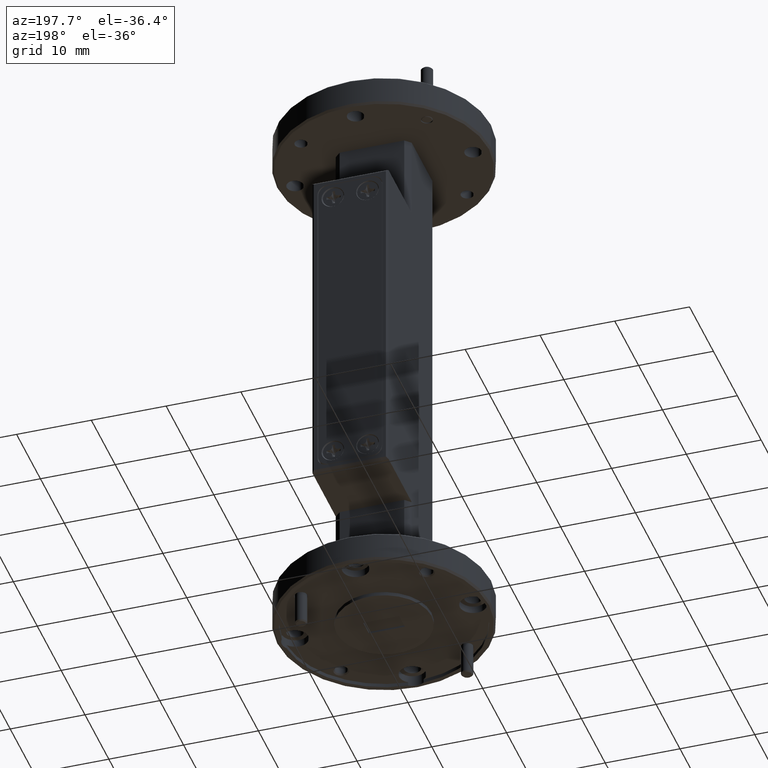
[diagram: clean part render]
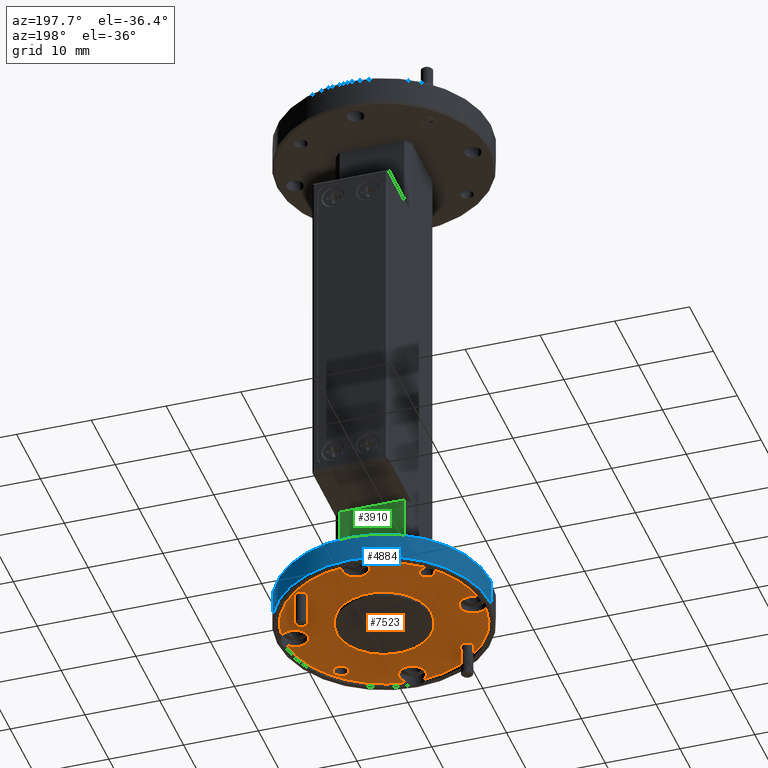
[diagram: same view with three faces highlighted in distinct colors, each labeled with its STEP entity id]
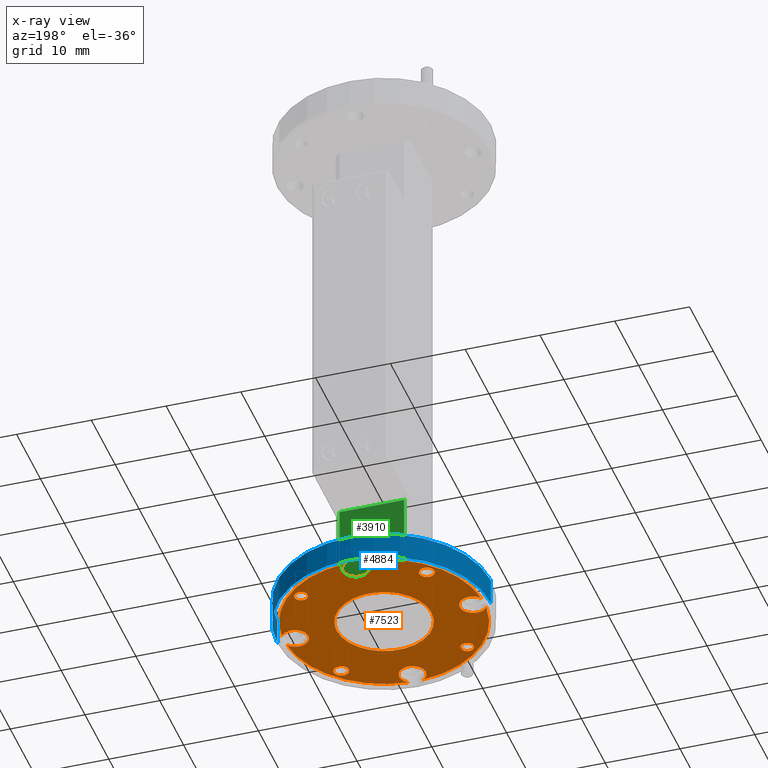
[diagram: x-ray of the same camera — body ghosted, the three highlighted faces saturated]
A machine part, auxiliary view with three faces highlighted in distinct colors.
The next image is the same camera in x-ray (body ghosted, the three faces saturated) — at least one of them is partly hidden behind the body in this view.
Their STEP definitions:

[orange] entity #7523 — the highlighted planar face has unit normal (0, 0, -1).
#43 = DIRECTION ( 'NONE',  ( -1.000000000000000000, 0.000000000000000000, 0.000000000000000000 ) ) ;
#83 = AXIS2_PLACEMENT_3D ( 'NONE', #3281, #2484, #9247 ) ;
#115 = CARTESIAN_POINT ( 'NONE',  ( 0.000000000000000000, 0.000000000000000000, -1.479999999999999982 ) ) ;
#120 = EDGE_CURVE ( 'NONE', #1105, #7238, #5233, .T. ) ;
#314 = VERTEX_POINT ( 'NONE', #1431 ) ;
#347 = VERTEX_POINT ( 'NONE', #3337 ) ;
#413 = CARTESIAN_POINT ( 'NONE',  ( -0.2500000000000000000, 0.000000000000000000, -1.479999999999999982 ) ) ;
#428 = CIRCLE ( 'NONE', #586, 0.03500000000000003803 ) ;
#461 = CARTESIAN_POINT ( 'NONE',  ( 0.3987499999999999933, 0.000000000000000000, -1.479999999999999982 ) ) ;
#514 = ORIENTED_EDGE ( 'NONE', *, *, #1768, .F. ) ;
#586 = AXIS2_PLACEMENT_3D ( 'NONE', #7644, #3032, #6835 ) ;
#609 = EDGE_CURVE ( 'NONE', #347, #1424, #6994, .T. ) ;
#626 = EDGE_LOOP ( 'NONE', ( #9260, #2370 ) ) ;
#651 = EDGE_CURVE ( 'NONE', #7348, #2653, #3474, .T. ) ;
#664 = DIRECTION ( 'NONE',  ( -0.000000000000000000, -0.000000000000000000, -1.000000000000000000 ) ) ;
#678 = DIRECTION ( 'NONE',  ( -1.000000000000000000, 0.000000000000000000, 0.000000000000000000 ) ) ;
#683 = VERTEX_POINT ( 'NONE', #7580 ) ;
#729 = AXIS2_PLACEMENT_3D ( 'NONE', #9747, #7349, #3438 ) ;
#741 = AXIS2_PLACEMENT_3D ( 'NONE', #7565, #3016, #7669 ) ;
#783 = FACE_OUTER_BOUND ( 'NONE', #2409, .T. ) ;
#790 = ORIENTED_EDGE ( 'NONE', *, *, #1443, .F. ) ;
#851 = CARTESIAN_POINT ( 'NONE',  ( -0.4687500000000000000, 0.000000000000000000, -1.479999999999999982 ) ) ;
#997 = AXIS2_PLACEMENT_3D ( 'NONE', #4890, #4031, #9342 ) ;
#1053 = ORIENTED_EDGE ( 'NONE', *, *, #4944, .F. ) ;
#1060 = CIRCLE ( 'NONE', #741, 0.5274999999999999689 ) ;
#1083 = CARTESIAN_POINT ( 'NONE',  ( 0.000000000000000000, 0.000000000000000000, -1.479999999999999982 ) ) ;
#1105 = VERTEX_POINT ( 'NONE', #1791 ) ;
#1213 = CARTESIAN_POINT ( 'NONE',  ( 0.000000000000000000, 0.000000000000000000, -1.479999999999999982 ) ) ;
#1305 = CIRCLE ( 'NONE', #3402, 0.03999999999999998002 ) ;
#1339 = AXIS2_PLACEMENT_3D ( 'NONE', #6550, #2699, #8797 ) ;
#1362 = CIRCLE ( 'NONE', #729, 0.07000000000000000666 ) ;
#1424 = VERTEX_POINT ( 'NONE', #7654 ) ;
#1431 = CARTESIAN_POINT ( 'NONE',  ( -0.04034337585031768508, 0.5259549999999999503, -1.479999999999999982 ) ) ;
#1443 = EDGE_CURVE ( 'NONE', #3849, #1553, #1305, .T. ) ;
#1512 = CARTESIAN_POINT ( 'NONE',  ( -9.184850993605148438E-17, 0.4687500000000000000, -1.479999999999999982 ) ) ;
#1514 = EDGE_CURVE ( 'NONE', #2643, #4633, #2116, .T. ) ;
#1515 = AXIS2_PLACEMENT_3D ( 'NONE', #3162, #9878, #9124 ) ;
#1543 = DIRECTION ( 'NONE',  ( -0.000000000000000000, -0.000000000000000000, -1.000000000000000000 ) ) ;
#1552 = CARTESIAN_POINT ( 'NONE',  ( 0.04034337585031740059, -0.5259549999999999503, -1.479999999999999982 ) ) ;
#1553 = VERTEX_POINT ( 'NONE', #6445 ) ;
#1589 = ORIENTED_EDGE ( 'NONE', *, *, #6790, .F. ) ;
#1619 = ORIENTED_EDGE ( 'NONE', *, *, #9559, .F. ) ;
#1671 = CARTESIAN_POINT ( 'NONE',  ( 0.3314563036811946639, -0.3314563036811936092, -1.479999999999999982 ) ) ;
#1768 = EDGE_CURVE ( 'NONE', #7238, #1105, #4519, .T. ) ;
#1791 = CARTESIAN_POINT ( 'NONE',  ( -0.2964563036811923569, -0.3314563036811958296, -1.479999999999999982 ) ) ;
#1814 = ORIENTED_EDGE ( 'NONE', *, *, #3528, .F. ) ;
#1833 = VERTEX_POINT ( 'NONE', #8384 ) ;
#1835 = EDGE_CURVE ( 'NONE', #9395, #683, #3409, .T. ) ;
#1956 = EDGE_CURVE ( 'NONE', #4892, #2574, #6301, .T. ) ;
#2077 = DIRECTION ( 'NONE',  ( -0.000000000000000000, -0.000000000000000000, -1.000000000000000000 ) ) ;
#2116 = CIRCLE ( 'NONE', #997, 0.03500000000000003803 ) ;
#2126 = DIRECTION ( 'NONE',  ( -1.000000000000000000, 0.000000000000000000, 0.000000000000000000 ) ) ;
#2230 = DIRECTION ( 'NONE',  ( -1.000000000000000000, 0.000000000000000000, 0.000000000000000000 ) ) ;
#2320 = CIRCLE ( 'NONE', #2815, 0.2500000000000000000 ) ;
#2331 = CARTESIAN_POINT ( 'NONE',  ( 0.000000000000000000, 0.000000000000000000, -1.479999999999999982 ) ) ;
#2370 = ORIENTED_EDGE ( 'NONE', *, *, #5857, .F. ) ;
#2382 = AXIS2_PLACEMENT_3D ( 'NONE', #7530, #664, #6768 ) ;
#2409 = EDGE_LOOP ( 'NONE', ( #6154, #6612, #3104, #7025, #2518, #7649, #8510, #7150, #3143, #1814, #8559, #6374, #1589, #1053 ) ) ;
#2415 = DIRECTION ( 'NONE',  ( -1.000000000000000000, 0.000000000000000000, 0.000000000000000000 ) ) ;
#2484 = DIRECTION ( 'NONE',  ( -0.000000000000000000, -0.000000000000000000, -1.000000000000000000 ) ) ;
#2499 = CARTESIAN_POINT ( 'NONE',  ( -0.5259549999999999503, -0.04034337585031767121, -1.479999999999999982 ) ) ;
#2500 = CIRCLE ( 'NONE', #2824, 0.2500000000000000000 ) ;
#2518 = ORIENTED_EDGE ( 'NONE', *, *, #9358, .T. ) ;
#2527 = DIRECTION ( 'NONE',  ( -1.000000000000000000, 0.000000000000000000, 0.000000000000000000 ) ) ;
#2574 = VERTEX_POINT ( 'NONE', #6254 ) ;
#2643 = VERTEX_POINT ( 'NONE', #9303 ) ;
#2653 = VERTEX_POINT ( 'NONE', #2499 ) ;
#2690 = AXIS2_PLACEMENT_3D ( 'NONE', #6917, #4628, #9885 ) ;
#2699 = DIRECTION ( 'NONE',  ( 0.000000000000000000, 0.000000000000000000, -1.000000000000000000 ) ) ;
#2815 = AXIS2_PLACEMENT_3D ( 'NONE', #115, #4816, #2527 ) ;
#2824 = AXIS2_PLACEMENT_3D ( 'NONE', #2331, #5294, #2126 ) ;
#2870 = AXIS2_PLACEMENT_3D ( 'NONE', #5169, #3554, #9812 ) ;
#2871 = EDGE_CURVE ( 'NONE', #3723, #5293, #4229, .T. ) ;
#2968 = CIRCLE ( 'NONE', #1515, 0.07000000000000000666 ) ;
#2985 = DIRECTION ( 'NONE',  ( -1.000000000000000000, 0.000000000000000000, 0.000000000000000000 ) ) ;
#2991 = DIRECTION ( 'NONE',  ( 0.000000000000000000, 0.000000000000000000, -1.000000000000000000 ) ) ;
#3002 = PLANE ( 'NONE',  #8416 ) ;
#3016 = DIRECTION ( 'NONE',  ( 0.000000000000000000, 0.000000000000000000, -1.000000000000000000 ) ) ;
#3021 = CARTESIAN_POINT ( 'NONE',  ( -0.3714563036811946439, 0.3314563036811936092, -1.479999999999999982 ) ) ;
#3032 = DIRECTION ( 'NONE',  ( -0.000000000000000000, -0.000000000000000000, -1.000000000000000000 ) ) ;
#3104 = ORIENTED_EDGE ( 'NONE', *, *, #2871, .F. ) ;
#3119 = AXIS2_PLACEMENT_3D ( 'NONE', #7607, #1543, #43 ) ;
#3143 = ORIENTED_EDGE ( 'NONE', *, *, #651, .T. ) ;
#3162 = CARTESIAN_POINT ( 'NONE',  ( -9.184850993605148438E-17, 0.4687500000000000000, -1.479999999999999982 ) ) ;
#3281 = CARTESIAN_POINT ( 'NONE',  ( -0.3314563036811946639, 0.3314563036811936092, -1.479999999999999982 ) ) ;
#3314 = ORIENTED_EDGE ( 'NONE', *, *, #5989, .F. ) ;
#3337 = CARTESIAN_POINT ( 'NONE',  ( 0.04034337585031740059, 0.5259549999999999503, -1.479999999999999982 ) ) ;
#3344 = CIRCLE ( 'NONE', #2382, 0.03999999999999998002 ) ;
#3402 = AXIS2_PLACEMENT_3D ( 'NONE', #1671, #7039, #2230 ) ;
#3409 = CIRCLE ( 'NONE', #3882, 0.07000000000000000666 ) ;
#3438 = DIRECTION ( 'NONE',  ( -1.000000000000000000, 0.000000000000000000, 0.000000000000000000 ) ) ;
#3474 = CIRCLE ( 'NONE', #2690, 0.5274999999999999689 ) ;
#3528 = EDGE_CURVE ( 'NONE', #2574, #2653, #5391, .T. ) ;
#3554 = DIRECTION ( 'NONE',  ( 0.000000000000000000, 0.000000000000000000, -1.000000000000000000 ) ) ;
#3657 = CIRCLE ( 'NONE', #5589, 0.5274999999999999689 ) ;
#3723 = VERTEX_POINT ( 'NONE', #461 ) ;
#3849 = VERTEX_POINT ( 'NONE', #4465 ) ;
#3882 = AXIS2_PLACEMENT_3D ( 'NONE', #5389, #8438, #2985 ) ;
#3887 = EDGE_CURVE ( 'NONE', #347, #5293, #1060, .T. ) ;
#4031 = DIRECTION ( 'NONE',  ( -0.000000000000000000, -0.000000000000000000, -1.000000000000000000 ) ) ;
#4034 = EDGE_LOOP ( 'NONE', ( #514, #5737 ) ) ;
#4036 = DIRECTION ( 'NONE',  ( -1.000000000000000000, 0.000000000000000000, 0.000000000000000000 ) ) ;
#4064 = DIRECTION ( 'NONE',  ( -1.000000000000000000, 0.000000000000000000, 0.000000000000000000 ) ) ;
#4098 = DIRECTION ( 'NONE',  ( 0.000000000000000000, 0.000000000000000000, -1.000000000000000000 ) ) ;
#4165 = CARTESIAN_POINT ( 'NONE',  ( -0.4687500000000000000, 0.000000000000000000, -1.479999999999999982 ) ) ;
#4193 = DIRECTION ( 'NONE',  ( -1.000000000000000000, 0.000000000000000000, 0.000000000000000000 ) ) ;
#4229 = CIRCLE ( 'NONE', #1339, 0.07000000000000000666 ) ;
#4348 = CARTESIAN_POINT ( 'NONE',  ( -0.04034337585031760876, -0.5259549999999999503, -1.479999999999999982 ) ) ;
#4386 = DIRECTION ( 'NONE',  ( -1.000000000000000000, 0.000000000000000000, 0.000000000000000000 ) ) ;
#4465 = CARTESIAN_POINT ( 'NONE',  ( 0.2914563036811946839, -0.3314563036811936092, -1.479999999999999982 ) ) ;
#4478 = CARTESIAN_POINT ( 'NONE',  ( 0.5259549999999999503, -0.04034337585031750467, -1.479999999999999982 ) ) ;
#4519 = CIRCLE ( 'NONE', #5965, 0.03500000000000003803 ) ;
#4576 = VERTEX_POINT ( 'NONE', #4478 ) ;
#4601 = CARTESIAN_POINT ( 'NONE',  ( 0.2500000000000000000, 3.061616997868383018E-17, -1.479999999999999982 ) ) ;
#4613 = AXIS2_PLACEMENT_3D ( 'NONE', #1083, #4945, #4036 ) ;
#4628 = DIRECTION ( 'NONE',  ( 0.000000000000000000, 0.000000000000000000, -1.000000000000000000 ) ) ;
#4633 = VERTEX_POINT ( 'NONE', #8380 ) ;
#4807 = VERTEX_POINT ( 'NONE', #413 ) ;
#4816 = DIRECTION ( 'NONE',  ( 0.000000000000000000, 0.000000000000000000, -1.000000000000000000 ) ) ;
#4858 = CARTESIAN_POINT ( 'NONE',  ( -9.184850993605148438E-17, -0.4687500000000000000, -1.479999999999999982 ) ) ;
#4890 = CARTESIAN_POINT ( 'NONE',  ( 0.3314563036811923880, 0.3314563036811958296, -1.479999999999999982 ) ) ;
#4892 = VERTEX_POINT ( 'NONE', #8133 ) ;
#4944 = EDGE_CURVE ( 'NONE', #1424, #1833, #8771, .T. ) ;
#4945 = DIRECTION ( 'NONE',  ( 0.000000000000000000, 0.000000000000000000, -1.000000000000000000 ) ) ;
#5016 = AXIS2_PLACEMENT_3D ( 'NONE', #4165, #7228, #4064 ) ;
#5029 = CARTESIAN_POINT ( 'NONE',  ( -0.07000000000000010381, -0.4687500000000000000, -1.479999999999999982 ) ) ;
#5033 = VERTEX_POINT ( 'NONE', #1552 ) ;
#5061 = CARTESIAN_POINT ( 'NONE',  ( 0.5259549999999999503, 0.04034337585031760876, -1.479999999999999982 ) ) ;
#5130 = DIRECTION ( 'NONE',  ( -1.000000000000000000, 0.000000000000000000, 0.000000000000000000 ) ) ;
#5169 = CARTESIAN_POINT ( 'NONE',  ( -9.184850993605148438E-17, 0.4687500000000000000, -1.479999999999999982 ) ) ;
#5179 = DIRECTION ( 'NONE',  ( 0.000000000000000000, 0.000000000000000000, -1.000000000000000000 ) ) ;
#5233 = CIRCLE ( 'NONE', #8751, 0.03500000000000003803 ) ;
#5293 = VERTEX_POINT ( 'NONE', #5061 ) ;
#5294 = DIRECTION ( 'NONE',  ( 0.000000000000000000, 0.000000000000000000, -1.000000000000000000 ) ) ;
#5348 = FACE_BOUND ( 'NONE', #4034, .T. ) ;
#5389 = CARTESIAN_POINT ( 'NONE',  ( -9.184850993605148438E-17, -0.4687500000000000000, -1.479999999999999982 ) ) ;
#5391 = CIRCLE ( 'NONE', #8734, 0.07000000000000000666 ) ;
#5448 = EDGE_CURVE ( 'NONE', #5934, #6713, #7604, .T. ) ;
#5589 = AXIS2_PLACEMENT_3D ( 'NONE', #1213, #5179, #5130 ) ;
#5691 = EDGE_CURVE ( 'NONE', #7348, #9395, #1362, .T. ) ;
#5737 = ORIENTED_EDGE ( 'NONE', *, *, #120, .F. ) ;
#5786 = ORIENTED_EDGE ( 'NONE', *, *, #5448, .F. ) ;
#5857 = EDGE_CURVE ( 'NONE', #7423, #4807, #2500, .T. ) ;
#5892 = AXIS2_PLACEMENT_3D ( 'NONE', #8491, #2991, #678 ) ;
#5934 = VERTEX_POINT ( 'NONE', #9339 ) ;
#5965 = AXIS2_PLACEMENT_3D ( 'NONE', #8835, #6585, #8192 ) ;
#5989 = EDGE_CURVE ( 'NONE', #6713, #5934, #6348, .T. ) ;
#5993 = CARTESIAN_POINT ( 'NONE',  ( -0.3314563036811923880, -0.3314563036811958296, -1.479999999999999982 ) ) ;
#6051 = CIRCLE ( 'NONE', #4613, 0.5274999999999999689 ) ;
#6055 = DIRECTION ( 'NONE',  ( 0.000000000000000000, 0.000000000000000000, -1.000000000000000000 ) ) ;
#6087 = DIRECTION ( 'NONE',  ( -1.000000000000000000, 0.000000000000000000, 0.000000000000000000 ) ) ;
#6101 = FACE_BOUND ( 'NONE', #9794, .T. ) ;
#6154 = ORIENTED_EDGE ( 'NONE', *, *, #609, .F. ) ;
#6224 = EDGE_LOOP ( 'NONE', ( #6701, #8853 ) ) ;
#6230 = DIRECTION ( 'NONE',  ( 0.000000000000000000, 0.000000000000000000, -1.000000000000000000 ) ) ;
#6254 = CARTESIAN_POINT ( 'NONE',  ( -0.3987499999999999933, 8.572527594031471957E-18, -1.479999999999999982 ) ) ;
#6301 = CIRCLE ( 'NONE', #5016, 0.07000000000000000666 ) ;
#6348 = CIRCLE ( 'NONE', #83, 0.03999999999999998002 ) ;
#6374 = ORIENTED_EDGE ( 'NONE', *, *, #8813, .T. ) ;
#6445 = CARTESIAN_POINT ( 'NONE',  ( 0.3714563036811946439, -0.3314563036811936092, -1.479999999999999982 ) ) ;
#6550 = CARTESIAN_POINT ( 'NONE',  ( 0.4687500000000000000, 0.000000000000000000, -1.479999999999999982 ) ) ;
#6585 = DIRECTION ( 'NONE',  ( -0.000000000000000000, -0.000000000000000000, -1.000000000000000000 ) ) ;
#6612 = ORIENTED_EDGE ( 'NONE', *, *, #3887, .T. ) ;
#6701 = ORIENTED_EDGE ( 'NONE', *, *, #7895, .F. ) ;
#6713 = VERTEX_POINT ( 'NONE', #3021 ) ;
#6768 = DIRECTION ( 'NONE',  ( -1.000000000000000000, 0.000000000000000000, 0.000000000000000000 ) ) ;
#6790 = EDGE_CURVE ( 'NONE', #1833, #314, #2968, .T. ) ;
#6793 = CARTESIAN_POINT ( 'NONE',  ( 0.000000000000000000, 0.000000000000000000, -1.479999999999999982 ) ) ;
#6798 = EDGE_CURVE ( 'NONE', #4807, #7423, #2320, .T. ) ;
#6833 = CIRCLE ( 'NONE', #7808, 0.07000000000000000666 ) ;
#6835 = DIRECTION ( 'NONE',  ( -1.000000000000000000, 0.000000000000000000, 0.000000000000000000 ) ) ;
#6889 = FACE_BOUND ( 'NONE', #626, .T. ) ;
#6917 = CARTESIAN_POINT ( 'NONE',  ( 0.000000000000000000, 0.000000000000000000, -1.479999999999999982 ) ) ;
#6937 = DIRECTION ( 'NONE',  ( -1.000000000000000000, 0.000000000000000000, -0.000000000000000000 ) ) ;
#6994 = CIRCLE ( 'NONE', #8444, 0.07000000000000000666 ) ;
#7025 = ORIENTED_EDGE ( 'NONE', *, *, #9067, .F. ) ;
#7039 = DIRECTION ( 'NONE',  ( -0.000000000000000000, -0.000000000000000000, -1.000000000000000000 ) ) ;
#7150 = ORIENTED_EDGE ( 'NONE', *, *, #5691, .F. ) ;
#7228 = DIRECTION ( 'NONE',  ( 0.000000000000000000, 0.000000000000000000, -1.000000000000000000 ) ) ;
#7238 = VERTEX_POINT ( 'NONE', #7249 ) ;
#7249 = CARTESIAN_POINT ( 'NONE',  ( -0.3664563036811924190, -0.3314563036811958296, -1.479999999999999982 ) ) ;
#7348 = VERTEX_POINT ( 'NONE', #4348 ) ;
#7349 = DIRECTION ( 'NONE',  ( 0.000000000000000000, 0.000000000000000000, -1.000000000000000000 ) ) ;
#7423 = VERTEX_POINT ( 'NONE', #4601 ) ;
#7523 = ADVANCED_FACE ( 'NONE', ( #9199, #6101, #7696, #5348, #783, #6889 ), #3002, .T. ) ;
#7530 = CARTESIAN_POINT ( 'NONE',  ( 0.3314563036811946639, -0.3314563036811936092, -1.479999999999999982 ) ) ;
#7565 = CARTESIAN_POINT ( 'NONE',  ( 0.000000000000000000, 0.000000000000000000, -1.479999999999999982 ) ) ;
#7580 = CARTESIAN_POINT ( 'NONE',  ( 0.06999999999999990952, -0.4687500000000000000, -1.479999999999999982 ) ) ;
#7604 = CIRCLE ( 'NONE', #3119, 0.03999999999999998002 ) ;
#7607 = CARTESIAN_POINT ( 'NONE',  ( -0.3314563036811946639, 0.3314563036811936092, -1.479999999999999982 ) ) ;
#7644 = CARTESIAN_POINT ( 'NONE',  ( 0.3314563036811923880, 0.3314563036811958296, -1.479999999999999982 ) ) ;
#7649 = ORIENTED_EDGE ( 'NONE', *, *, #8421, .F. ) ;
#7654 = CARTESIAN_POINT ( 'NONE',  ( 0.06999999999999990952, 0.4687500000000000000, -1.479999999999999982 ) ) ;
#7669 = DIRECTION ( 'NONE',  ( -1.000000000000000000, 0.000000000000000000, 0.000000000000000000 ) ) ;
#7696 = FACE_BOUND ( 'NONE', #6224, .T. ) ;
#7808 = AXIS2_PLACEMENT_3D ( 'NONE', #4858, #4098, #4193 ) ;
#7895 = EDGE_CURVE ( 'NONE', #4633, #2643, #428, .T. ) ;
#8004 = EDGE_LOOP ( 'NONE', ( #3314, #5786 ) ) ;
#8133 = CARTESIAN_POINT ( 'NONE',  ( -0.5259549999999999503, 0.04034337585031750467, -1.479999999999999982 ) ) ;
#8192 = DIRECTION ( 'NONE',  ( -1.000000000000000000, 0.000000000000000000, 0.000000000000000000 ) ) ;
#8380 = CARTESIAN_POINT ( 'NONE',  ( 0.2964563036811923569, 0.3314563036811958296, -1.479999999999999982 ) ) ;
#8384 = CARTESIAN_POINT ( 'NONE',  ( -0.07000000000000010381, 0.4687500000000000000, -1.479999999999999982 ) ) ;
#8416 = AXIS2_PLACEMENT_3D ( 'NONE', #6793, #6055, #6937 ) ;
#8421 = EDGE_CURVE ( 'NONE', #683, #5033, #6833, .T. ) ;
#8437 = DIRECTION ( 'NONE',  ( 0.000000000000000000, 0.000000000000000000, -1.000000000000000000 ) ) ;
#8438 = DIRECTION ( 'NONE',  ( 0.000000000000000000, 0.000000000000000000, -1.000000000000000000 ) ) ;
#8444 = AXIS2_PLACEMENT_3D ( 'NONE', #1512, #8437, #6087 ) ;
#8491 = CARTESIAN_POINT ( 'NONE',  ( 0.4687500000000000000, 0.000000000000000000, -1.479999999999999982 ) ) ;
#8510 = ORIENTED_EDGE ( 'NONE', *, *, #1835, .F. ) ;
#8559 = ORIENTED_EDGE ( 'NONE', *, *, #1956, .F. ) ;
#8734 = AXIS2_PLACEMENT_3D ( 'NONE', #851, #6230, #2415 ) ;
#8751 = AXIS2_PLACEMENT_3D ( 'NONE', #5993, #2077, #4386 ) ;
#8771 = CIRCLE ( 'NONE', #2870, 0.07000000000000000666 ) ;
#8797 = DIRECTION ( 'NONE',  ( -1.000000000000000000, 0.000000000000000000, 0.000000000000000000 ) ) ;
#8813 = EDGE_CURVE ( 'NONE', #4892, #314, #6051, .T. ) ;
#8835 = CARTESIAN_POINT ( 'NONE',  ( -0.3314563036811923880, -0.3314563036811958296, -1.479999999999999982 ) ) ;
#8853 = ORIENTED_EDGE ( 'NONE', *, *, #1514, .F. ) ;
#9067 = EDGE_CURVE ( 'NONE', #4576, #3723, #9726, .T. ) ;
#9124 = DIRECTION ( 'NONE',  ( -1.000000000000000000, 0.000000000000000000, 0.000000000000000000 ) ) ;
#9199 = FACE_BOUND ( 'NONE', #8004, .T. ) ;
#9247 = DIRECTION ( 'NONE',  ( -1.000000000000000000, 0.000000000000000000, 0.000000000000000000 ) ) ;
#9260 = ORIENTED_EDGE ( 'NONE', *, *, #6798, .F. ) ;
#9303 = CARTESIAN_POINT ( 'NONE',  ( 0.3664563036811924190, 0.3314563036811958296, -1.479999999999999982 ) ) ;
#9339 = CARTESIAN_POINT ( 'NONE',  ( -0.2914563036811946839, 0.3314563036811936092, -1.479999999999999982 ) ) ;
#9342 = DIRECTION ( 'NONE',  ( -1.000000000000000000, 0.000000000000000000, 0.000000000000000000 ) ) ;
#9358 = EDGE_CURVE ( 'NONE', #4576, #5033, #3657, .T. ) ;
#9395 = VERTEX_POINT ( 'NONE', #5029 ) ;
#9559 = EDGE_CURVE ( 'NONE', #1553, #3849, #3344, .T. ) ;
#9726 = CIRCLE ( 'NONE', #5892, 0.07000000000000000666 ) ;
#9747 = CARTESIAN_POINT ( 'NONE',  ( -9.184850993605148438E-17, -0.4687500000000000000, -1.479999999999999982 ) ) ;
#9794 = EDGE_LOOP ( 'NONE', ( #790, #1619 ) ) ;
#9812 = DIRECTION ( 'NONE',  ( -1.000000000000000000, 0.000000000000000000, 0.000000000000000000 ) ) ;
#9878 = DIRECTION ( 'NONE',  ( 0.000000000000000000, 0.000000000000000000, -1.000000000000000000 ) ) ;
#9885 = DIRECTION ( 'NONE',  ( -1.000000000000000000, 0.000000000000000000, 0.000000000000000000 ) ) ;

[blue] entity #4884 — the highlighted cylindrical surface (partial cylindrical patch) has radius 14.2875 mm, axis along (0, 0, -1).
#50 = ORIENTED_EDGE ( 'NONE', *, *, #7462, .F. ) ;
#989 = ORIENTED_EDGE ( 'NONE', *, *, #1600, .T. ) ;
#1077 = DIRECTION ( 'NONE',  ( -0.000000000000000000, -0.000000000000000000, 1.000000000000000000 ) ) ;
#1102 = ORIENTED_EDGE ( 'NONE', *, *, #9040, .T. ) ;
#1343 = DIRECTION ( 'NONE',  ( -1.000000000000000000, 0.000000000000000000, 0.000000000000000000 ) ) ;
#1505 = VERTEX_POINT ( 'NONE', #4795 ) ;
#1600 = EDGE_CURVE ( 'NONE', #2243, #8621, #3722, .T. ) ;
#1846 = ORIENTED_EDGE ( 'NONE', *, *, #7585, .T. ) ;
#2243 = VERTEX_POINT ( 'NONE', #8169 ) ;
#2449 = AXIS2_PLACEMENT_3D ( 'NONE', #4077, #1077, #7894 ) ;
#2908 = CARTESIAN_POINT ( 'NONE',  ( -0.5625000000000001110, 0.000000000000000000, -1.489999999999999325 ) ) ;
#2966 = FACE_OUTER_BOUND ( 'NONE', #4147, .T. ) ;
#3137 = DIRECTION ( 'NONE',  ( 0.000000000000000000, 0.000000000000000000, -1.000000000000000000 ) ) ;
#3386 = CARTESIAN_POINT ( 'NONE',  ( 0.000000000000000000, 0.000000000000000000, -1.349999999999999423 ) ) ;
#3722 = CIRCLE ( 'NONE', #2449, 0.5625000000000001110 ) ;
#3967 = AXIS2_PLACEMENT_3D ( 'NONE', #7370, #5076, #1343 ) ;
#4077 = CARTESIAN_POINT ( 'NONE',  ( 0.000000000000000000, 0.000000000000000000, -1.489999999999999325 ) ) ;
#4147 = EDGE_LOOP ( 'NONE', ( #1846, #1102, #989, #50 ) ) ;
#4336 = LINE ( 'NONE', #7388, #4766 ) ;
#4420 = CIRCLE ( 'NONE', #7458, 0.5625000000000001110 ) ;
#4554 = VERTEX_POINT ( 'NONE', #5181 ) ;
#4744 = DIRECTION ( 'NONE',  ( 0.000000000000000000, 0.000000000000000000, -1.000000000000000000 ) ) ;
#4766 = VECTOR ( 'NONE', #5189, 39.37007874015748143 ) ;
#4795 = CARTESIAN_POINT ( 'NONE',  ( 0.5625000000000001110, 6.888638245203861944E-17, -1.349999999999999423 ) ) ;
#4884 = ADVANCED_FACE ( 'NONE', ( #2966 ), #5874, .T. ) ;
#5076 = DIRECTION ( 'NONE',  ( 0.000000000000000000, 0.000000000000000000, -1.000000000000000000 ) ) ;
#5181 = CARTESIAN_POINT ( 'NONE',  ( -0.5625000000000001110, 0.000000000000000000, -1.349999999999999423 ) ) ;
#5189 = DIRECTION ( 'NONE',  ( 0.000000000000000000, 0.000000000000000000, -1.000000000000000000 ) ) ;
#5874 = CYLINDRICAL_SURFACE ( 'NONE', #3967, 0.5625000000000001110 ) ;
#6202 = LINE ( 'NONE', #8347, #8099 ) ;
#6447 = DIRECTION ( 'NONE',  ( -1.000000000000000000, 0.000000000000000000, 0.000000000000000000 ) ) ;
#7370 = CARTESIAN_POINT ( 'NONE',  ( 0.000000000000000000, 0.000000000000000000, -1.340000000000000080 ) ) ;
#7388 = CARTESIAN_POINT ( 'NONE',  ( 0.5625000000000001110, 6.888638245203861944E-17, -1.340000000000000080 ) ) ;
#7458 = AXIS2_PLACEMENT_3D ( 'NONE', #3386, #4744, #6447 ) ;
#7462 = EDGE_CURVE ( 'NONE', #4554, #8621, #6202, .T. ) ;
#7585 = EDGE_CURVE ( 'NONE', #4554, #1505, #4420, .T. ) ;
#7894 = DIRECTION ( 'NONE',  ( 1.000000000000000000, 0.000000000000000000, 0.000000000000000000 ) ) ;
#8099 = VECTOR ( 'NONE', #3137, 39.37007874015748143 ) ;
#8169 = CARTESIAN_POINT ( 'NONE',  ( 0.5625000000000001110, 6.888638245203861944E-17, -1.489999999999999325 ) ) ;
#8347 = CARTESIAN_POINT ( 'NONE',  ( -0.5625000000000001110, 0.000000000000000000, -1.340000000000000080 ) ) ;
#8621 = VERTEX_POINT ( 'NONE', #2908 ) ;
#9040 = EDGE_CURVE ( 'NONE', #1505, #2243, #4336, .T. ) ;

[green] entity #3910 — the highlighted planar face has unit normal (0, -1, 0).
#105 = EDGE_CURVE ( 'NONE', #1913, #3574, #7393, .T. ) ;
#529 = DIRECTION ( 'NONE',  ( 0.000000000000000000, 0.000000000000000000, -1.000000000000000000 ) ) ;
#740 = VECTOR ( 'NONE', #7792, 39.37007874015748143 ) ;
#864 = DIRECTION ( 'NONE',  ( 0.000000000000000000, 0.000000000000000000, 1.000000000000000000 ) ) ;
#897 = VECTOR ( 'NONE', #1224, 39.37007874015748143 ) ;
#1173 = CARTESIAN_POINT ( 'NONE',  ( 0.1699999999999996514, 0.2000000000000000111, 1.500000000000000222 ) ) ;
#1224 = DIRECTION ( 'NONE',  ( 1.000000000000000000, 0.000000000000000000, 0.000000000000000000 ) ) ;
#1913 = VERTEX_POINT ( 'NONE', #8681 ) ;
#2017 = AXIS2_PLACEMENT_3D ( 'NONE', #3851, #3056, #5471 ) ;
#2297 = FACE_OUTER_BOUND ( 'NONE', #3880, .T. ) ;
#2582 = CARTESIAN_POINT ( 'NONE',  ( 0.1699999999999996514, 0.2000000000000000111, -1.340000000000000080 ) ) ;
#3056 = DIRECTION ( 'NONE',  ( 0.000000000000000000, -1.000000000000000000, 0.000000000000000000 ) ) ;
#3142 = CARTESIAN_POINT ( 'NONE',  ( -0.1700000000000001232, 0.2000000000000000111, -0.8999999999999999112 ) ) ;
#3148 = VECTOR ( 'NONE', #529, 39.37007874015748143 ) ;
#3166 = LINE ( 'NONE', #7885, #740 ) ;
#3272 = LINE ( 'NONE', #6522, #8281 ) ;
#3574 = VERTEX_POINT ( 'NONE', #2582 ) ;
#3752 = PLANE ( 'NONE',  #2017 ) ;
#3851 = CARTESIAN_POINT ( 'NONE',  ( -0.2000000000000000944, 0.2000000000000000111, 1.500000000000000222 ) ) ;
#3880 = EDGE_LOOP ( 'NONE', ( #8266, #5861, #4168, #7063 ) ) ;
#3910 = ADVANCED_FACE ( 'NONE', ( #2297 ), #3752, .F. ) ;
#4168 = ORIENTED_EDGE ( 'NONE', *, *, #6126, .T. ) ;
#4359 = VERTEX_POINT ( 'NONE', #3142 ) ;
#5471 = DIRECTION ( 'NONE',  ( 0.000000000000000000, -0.000000000000000000, -1.000000000000000000 ) ) ;
#5681 = VERTEX_POINT ( 'NONE', #5903 ) ;
#5861 = ORIENTED_EDGE ( 'NONE', *, *, #8014, .T. ) ;
#5903 = CARTESIAN_POINT ( 'NONE',  ( -0.1700000000000001232, 0.2000000000000000111, -1.340000000000000080 ) ) ;
#6126 = EDGE_CURVE ( 'NONE', #4359, #1913, #3166, .T. ) ;
#6522 = CARTESIAN_POINT ( 'NONE',  ( -0.1700000000000001232, 0.2000000000000000111, 1.500000000000000222 ) ) ;
#7063 = ORIENTED_EDGE ( 'NONE', *, *, #105, .T. ) ;
#7393 = LINE ( 'NONE', #1173, #3148 ) ;
#7766 = EDGE_CURVE ( 'NONE', #5681, #3574, #8097, .T. ) ;
#7792 = DIRECTION ( 'NONE',  ( 1.000000000000000000, -0.000000000000000000, -0.000000000000000000 ) ) ;
#7885 = CARTESIAN_POINT ( 'NONE',  ( 0.1999999999999999556, 0.2000000000000000111, -0.8999999999999999112 ) ) ;
#8014 = EDGE_CURVE ( 'NONE', #5681, #4359, #3272, .T. ) ;
#8097 = LINE ( 'NONE', #8193, #897 ) ;
#8193 = CARTESIAN_POINT ( 'NONE',  ( -0.2000000000000000944, 0.2000000000000000111, -1.340000000000000080 ) ) ;
#8266 = ORIENTED_EDGE ( 'NONE', *, *, #7766, .F. ) ;
#8281 = VECTOR ( 'NONE', #864, 39.37007874015748143 ) ;
#8681 = CARTESIAN_POINT ( 'NONE',  ( 0.1699999999999996514, 0.2000000000000000111, -0.8999999999999999112 ) ) ;